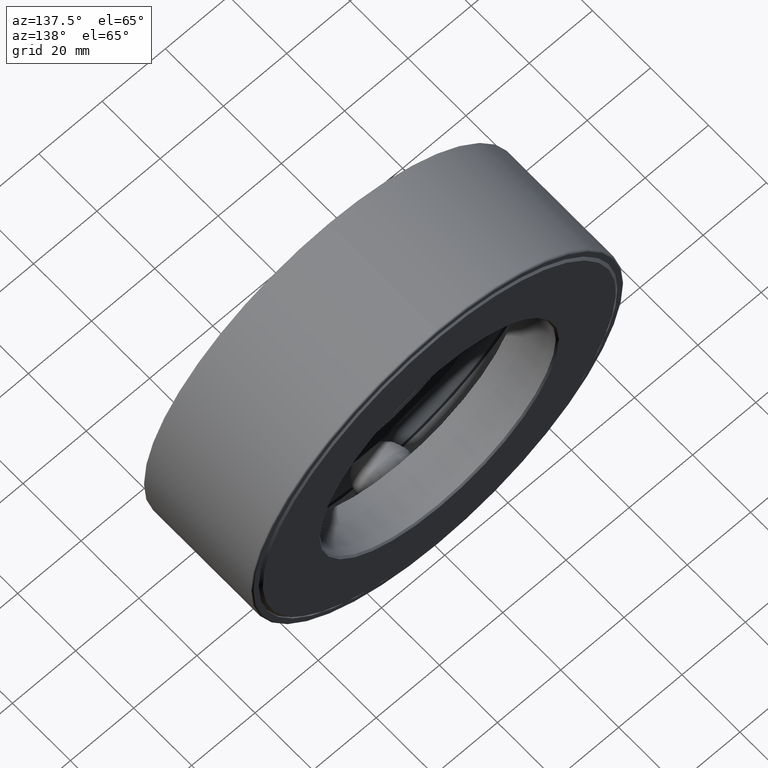
[diagram: clean part render]
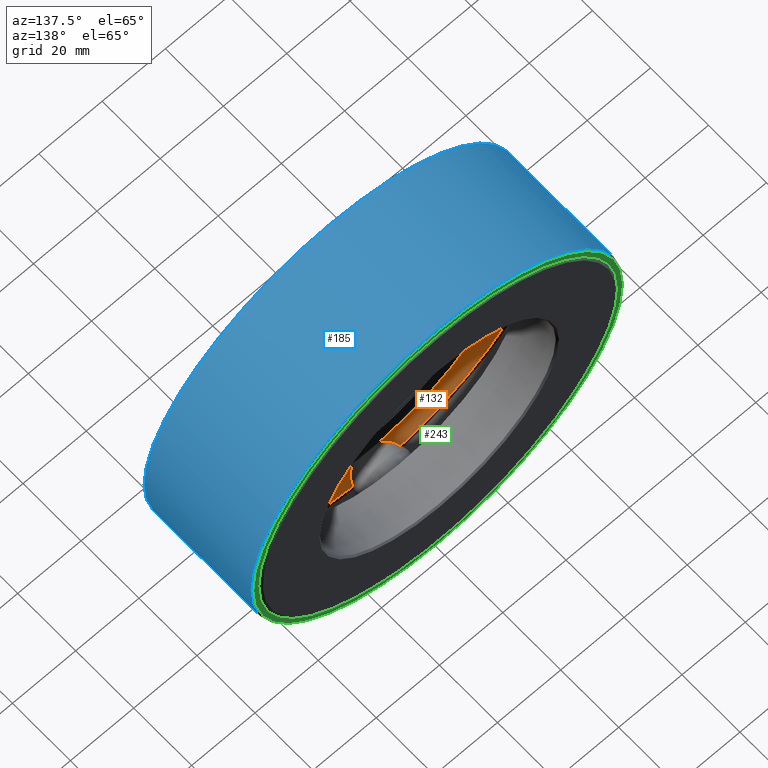
[diagram: same view with three faces highlighted in distinct colors, each labeled with its STEP entity id]
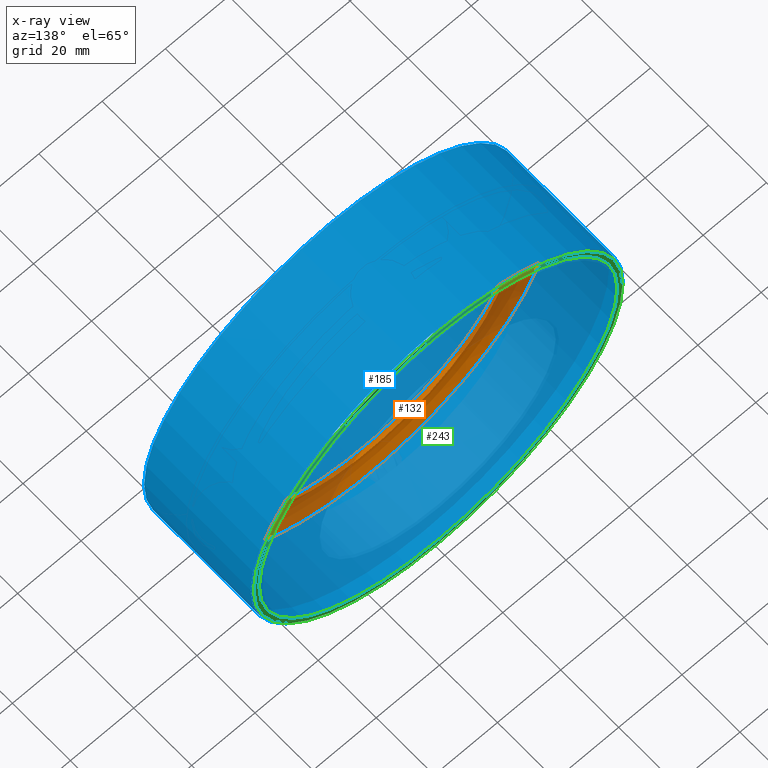
[diagram: x-ray of the same camera — body ghosted, the three highlighted faces saturated]
A machine part, auxiliary view with three faces highlighted in distinct colors.
The next image is the same camera in x-ray (body ghosted, the three faces saturated) — at least one of them is partly hidden behind the body in this view.
Their STEP definitions:

[orange] entity #132 — the highlighted toroidal blend (fillet) surface has major radius 50.0634 mm and minor (blend) radius 7.9375 mm.
#46 = DIRECTION ( 'NONE',  ( 0.0000000000000000000, 0.0000000000000000000, 1.000000000000000000 ) ) ;
#50 = AXIS2_PLACEMENT_3D ( 'NONE', #145, #54, #149 ) ;
#54 = DIRECTION ( 'NONE',  ( -0.0000000000000000000, 1.000000000000000000, -0.0000000000000000000 ) ) ;
#64 = ORIENTED_EDGE ( 'NONE', *, *, #570, .T. ) ;
#117 = VERTEX_POINT ( 'NONE', #596 ) ;
#127 = CIRCLE ( 'NONE', #50, 2.221000000000000100 ) ;
#132 = ADVANCED_FACE ( 'NONE', ( #477, #165 ), #341, .F. ) ;
#145 = CARTESIAN_POINT ( 'NONE',  ( 0.0000000000000000000, 0.5624999999999998900, 0.0000000000000000000 ) ) ;
#149 = DIRECTION ( 'NONE',  ( 0.0000000000000000000, 0.0000000000000000000, 1.000000000000000000 ) ) ;
#164 = CARTESIAN_POINT ( 'NONE',  ( 0.0000000000000000000, 0.5625000000000001100, 0.0000000000000000000 ) ) ;
#165 = FACE_OUTER_BOUND ( 'NONE', #195, .T. ) ;
#189 = CARTESIAN_POINT ( 'NONE',  ( 0.0000000000000000000, 0.7499999999999998900, 0.0000000000000000000 ) ) ;
#195 = EDGE_LOOP ( 'NONE', ( #64 ) ) ;
#329 = AXIS2_PLACEMENT_3D ( 'NONE', #189, #432, #46 ) ;
#341 = TOROIDAL_SURFACE ( 'NONE', #329, 1.970999999999999900, 0.3125000000000000000 ) ;
#351 = DIRECTION ( 'NONE',  ( 0.0000000000000000000, 0.0000000000000000000, 1.000000000000000000 ) ) ;
#359 = DIRECTION ( 'NONE',  ( -0.0000000000000000000, 1.000000000000000000, -0.0000000000000000000 ) ) ;
#367 = CARTESIAN_POINT ( 'NONE',  ( 0.0000000000000000000, 0.5624999999999998900, 2.221000000000000100 ) ) ;
#376 = EDGE_CURVE ( 'NONE', #117, #117, #605, .T. ) ;
#432 = DIRECTION ( 'NONE',  ( -0.0000000000000000000, 1.000000000000000000, -0.0000000000000000000 ) ) ;
#458 = ORIENTED_EDGE ( 'NONE', *, *, #376, .F. ) ;
#472 = AXIS2_PLACEMENT_3D ( 'NONE', #164, #359, #351 ) ;
#477 = FACE_OUTER_BOUND ( 'NONE', #543, .T. ) ;
#513 = VERTEX_POINT ( 'NONE', #367 ) ;
#543 = EDGE_LOOP ( 'NONE', ( #458 ) ) ;
#570 = EDGE_CURVE ( 'NONE', #513, #513, #127, .T. ) ;
#596 = CARTESIAN_POINT ( 'NONE',  ( 0.0000000000000000000, 0.5625000000000001100, 1.720999999999999900 ) ) ;
#605 = CIRCLE ( 'NONE', #472, 1.720999999999999900 ) ;

[blue] entity #185 — the highlighted cylindrical surface (bore or boss wall) has radius 58.7375 mm, axis along (-0, 1, -0).
#7 = AXIS2_PLACEMENT_3D ( 'NONE', #354, #162, #494 ) ;
#74 = DIRECTION ( 'NONE',  ( -0.0000000000000000000, 1.000000000000000000, -0.0000000000000000000 ) ) ;
#92 = DIRECTION ( 'NONE',  ( 0.0000000000000000000, 0.0000000000000000000, 1.000000000000000000 ) ) ;
#108 = VERTEX_POINT ( 'NONE', #413 ) ;
#126 = VERTEX_POINT ( 'NONE', #408 ) ;
#162 = DIRECTION ( 'NONE',  ( -0.0000000000000000000, 1.000000000000000000, -0.0000000000000000000 ) ) ;
#185 = ADVANCED_FACE ( 'NONE', ( #356, #588 ), #571, .T. ) ;
#186 = DIRECTION ( 'NONE',  ( 0.0000000000000000000, 0.0000000000000000000, 1.000000000000000000 ) ) ;
#199 = CIRCLE ( 'NONE', #233, 2.312500000000000000 ) ;
#223 = ORIENTED_EDGE ( 'NONE', *, *, #538, .F. ) ;
#233 = AXIS2_PLACEMENT_3D ( 'NONE', #377, #74, #92 ) ;
#241 = EDGE_LOOP ( 'NONE', ( #516 ) ) ;
#298 = AXIS2_PLACEMENT_3D ( 'NONE', #390, #475, #186 ) ;
#354 = CARTESIAN_POINT ( 'NONE',  ( 0.0000000000000000000, 0.01499999999999997700, 0.0000000000000000000 ) ) ;
#356 = FACE_OUTER_BOUND ( 'NONE', #550, .T. ) ;
#377 = CARTESIAN_POINT ( 'NONE',  ( 0.0000000000000000000, 1.464999999999999900, 0.0000000000000000000 ) ) ;
#378 = CIRCLE ( 'NONE', #7, 2.312500000000000000 ) ;
#390 = CARTESIAN_POINT ( 'NONE',  ( 0.0000000000000000000, 0.0000000000000000000, 0.0000000000000000000 ) ) ;
#408 = CARTESIAN_POINT ( 'NONE',  ( 0.0000000000000000000, 1.464999999999999900, 2.312500000000000000 ) ) ;
#413 = CARTESIAN_POINT ( 'NONE',  ( 0.0000000000000000000, 0.01499999999999997700, 2.312500000000000000 ) ) ;
#468 = EDGE_CURVE ( 'NONE', #108, #108, #378, .T. ) ;
#475 = DIRECTION ( 'NONE',  ( -0.0000000000000000000, 1.000000000000000000, -0.0000000000000000000 ) ) ;
#494 = DIRECTION ( 'NONE',  ( 0.0000000000000000000, 0.0000000000000000000, 1.000000000000000000 ) ) ;
#516 = ORIENTED_EDGE ( 'NONE', *, *, #468, .T. ) ;
#538 = EDGE_CURVE ( 'NONE', #126, #126, #199, .T. ) ;
#550 = EDGE_LOOP ( 'NONE', ( #223 ) ) ;
#571 = CYLINDRICAL_SURFACE ( 'NONE', #298, 2.312500000000000000 ) ;
#588 = FACE_OUTER_BOUND ( 'NONE', #241, .T. ) ;

[green] entity #243 — the highlighted planar face has unit normal (0, -1, 0).
#31 = CARTESIAN_POINT ( 'NONE',  ( 0.0000000000000000000, 1.484999999999999900, 2.292500000000000000 ) ) ;
#38 = FACE_BOUND ( 'NONE', #125, .T. ) ;
#41 = FACE_OUTER_BOUND ( 'NONE', #343, .T. ) ;
#49 = CARTESIAN_POINT ( 'NONE',  ( 0.0000000000000000000, 1.484999999999999900, 0.0000000000000000000 ) ) ;
#80 = AXIS2_PLACEMENT_3D ( 'NONE', #49, #232, #566 ) ;
#91 = EDGE_CURVE ( 'NONE', #174, #174, #314, .T. ) ;
#125 = EDGE_LOOP ( 'NONE', ( #473 ) ) ;
#136 = CIRCLE ( 'NONE', #143, 2.292500000000000000 ) ;
#138 = DIRECTION ( 'NONE',  ( 0.0000000000000000000, 0.0000000000000000000, 1.000000000000000000 ) ) ;
#143 = AXIS2_PLACEMENT_3D ( 'NONE', #169, #546, #138 ) ;
#150 = CARTESIAN_POINT ( 'NONE',  ( 0.0000000000000000000, 1.484999999999999900, 2.232499999999999900 ) ) ;
#169 = CARTESIAN_POINT ( 'NONE',  ( 0.0000000000000000000, 1.484999999999999900, 0.0000000000000000000 ) ) ;
#174 = VERTEX_POINT ( 'NONE', #150 ) ;
#232 = DIRECTION ( 'NONE',  ( 0.0000000000000000000, -1.000000000000000000, 0.0000000000000000000 ) ) ;
#243 = ADVANCED_FACE ( 'NONE', ( #38, #41 ), #289, .F. ) ;
#255 = VERTEX_POINT ( 'NONE', #31 ) ;
#289 = PLANE ( 'NONE',  #80 ) ;
#314 = CIRCLE ( 'NONE', #417, 2.232499999999999900 ) ;
#343 = EDGE_LOOP ( 'NONE', ( #574 ) ) ;
#386 = DIRECTION ( 'NONE',  ( 0.0000000000000000000, 0.0000000000000000000, 1.000000000000000000 ) ) ;
#417 = AXIS2_PLACEMENT_3D ( 'NONE', #561, #467, #386 ) ;
#467 = DIRECTION ( 'NONE',  ( -0.0000000000000000000, 1.000000000000000000, -0.0000000000000000000 ) ) ;
#473 = ORIENTED_EDGE ( 'NONE', *, *, #91, .F. ) ;
#512 = EDGE_CURVE ( 'NONE', #255, #255, #136, .T. ) ;
#546 = DIRECTION ( 'NONE',  ( -0.0000000000000000000, 1.000000000000000000, -0.0000000000000000000 ) ) ;
#561 = CARTESIAN_POINT ( 'NONE',  ( 0.0000000000000000000, 1.484999999999999900, 0.0000000000000000000 ) ) ;
#566 = DIRECTION ( 'NONE',  ( 0.0000000000000000000, -0.0000000000000000000, -1.000000000000000000 ) ) ;
#574 = ORIENTED_EDGE ( 'NONE', *, *, #512, .T. ) ;